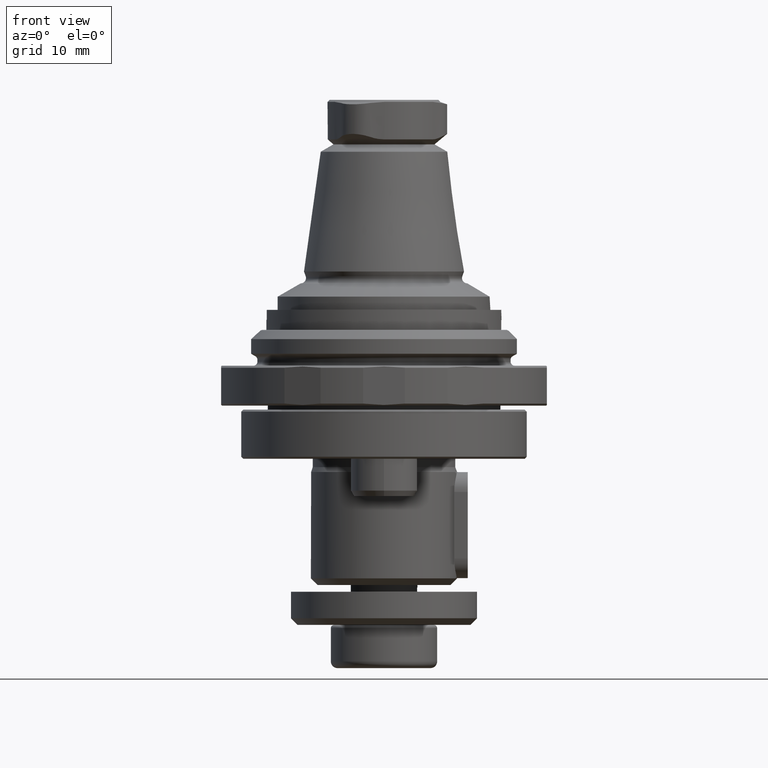
[diagram: clean part render]
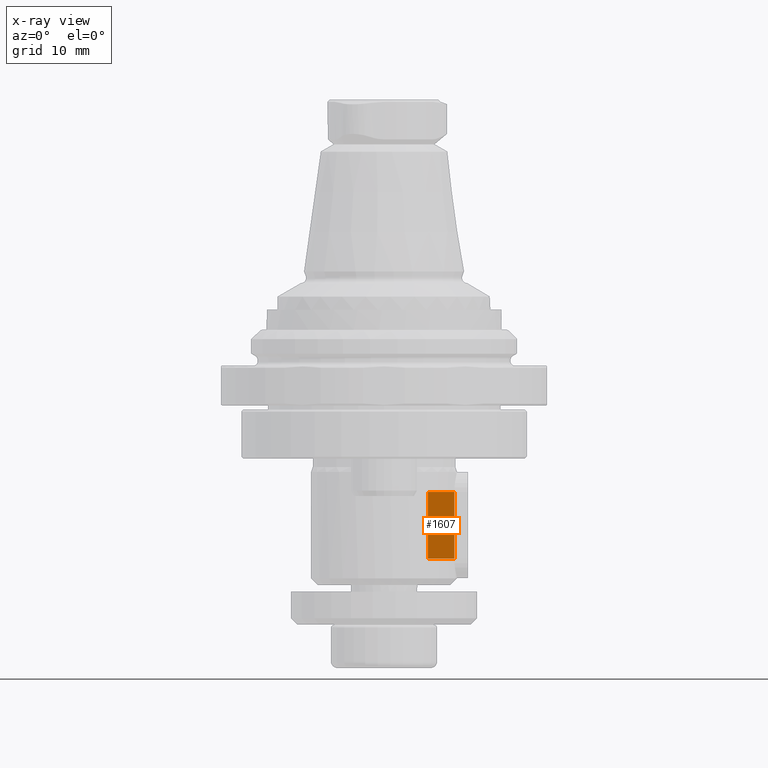
[diagram: x-ray — body ghosted, one internal face saturated and labeled with its STEP entity id]
A machine part, front view, then the same camera in x-ray: the body is ghosted and one INTERNAL B-rep face — a face not visible from any outside direction — is saturated and labeled: STEP entity #1607.
In plain terms, the highlighted planar face has unit normal (0, -1, 0).
Its self-contained STEP definition (entity closure, byte-faithful):
#31=PLANE('',#1762);
#92=LINE('',#2689,#163);
#95=LINE('',#2744,#166);
#96=LINE('',#2746,#167);
#97=LINE('',#2748,#168);
#163=VECTOR('',#2008,1000.);
#166=VECTOR('',#2063,1000.);
#167=VECTOR('',#2064,1000.);
#168=VECTOR('',#2065,1000.);
#465=ORIENTED_EDGE('',*,*,#850,.T.);
#466=ORIENTED_EDGE('',*,*,#871,.F.);
#467=ORIENTED_EDGE('',*,*,#872,.F.);
#468=ORIENTED_EDGE('',*,*,#873,.F.);
#850=EDGE_CURVE('',#1045,#1046,#92,.T.);
#871=EDGE_CURVE('',#1061,#1046,#95,.T.);
#872=EDGE_CURVE('',#1062,#1061,#96,.T.);
#873=EDGE_CURVE('',#1045,#1062,#97,.T.);
#1045=VERTEX_POINT('',#2690);
#1046=VERTEX_POINT('',#2691);
#1061=VERTEX_POINT('',#2745);
#1062=VERTEX_POINT('',#2747);
#1276=EDGE_LOOP('',(#465,#466,#467,#468));
#1436=FACE_BOUND('',#1276,.T.);
#1607=ADVANCED_FACE('',(#1436),#31,.T.);
#1762=AXIS2_PLACEMENT_3D('',#2743,#2061,#2062);
#2008=DIRECTION('',(-1.,0.,0.));
#2061=DIRECTION('',(0.,-1.,0.));
#2062=DIRECTION('',(0.,0.,-1.));
#2063=DIRECTION('',(0.,0.,1.));
#2064=DIRECTION('',(-1.,0.,0.));
#2065=DIRECTION('',(0.,0.,-1.));
#2689=CARTESIAN_POINT('',(101.610525732679,3.,-20.));
#2690=CARTESIAN_POINT('',(10.5830052442584,3.,-20.));
#2691=CARTESIAN_POINT('',(6.6,3.,-20.));
#2743=CARTESIAN_POINT('',(101.610525732679,3.,-30.));
#2744=CARTESIAN_POINT('',(6.6,3.,-30.));
#2745=CARTESIAN_POINT('',(6.6,3.,-30.));
#2746=CARTESIAN_POINT('',(101.610525732679,3.,-30.));
#2747=CARTESIAN_POINT('',(10.5830052442584,3.,-30.));
#2748=CARTESIAN_POINT('',(10.5830052442584,3.,-50.));